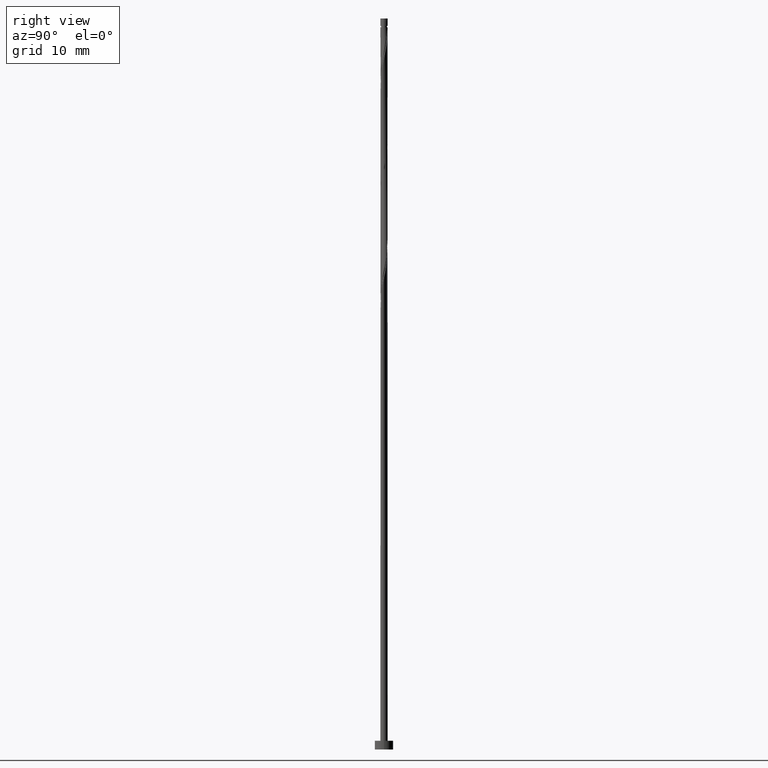
[diagram: clean part render]
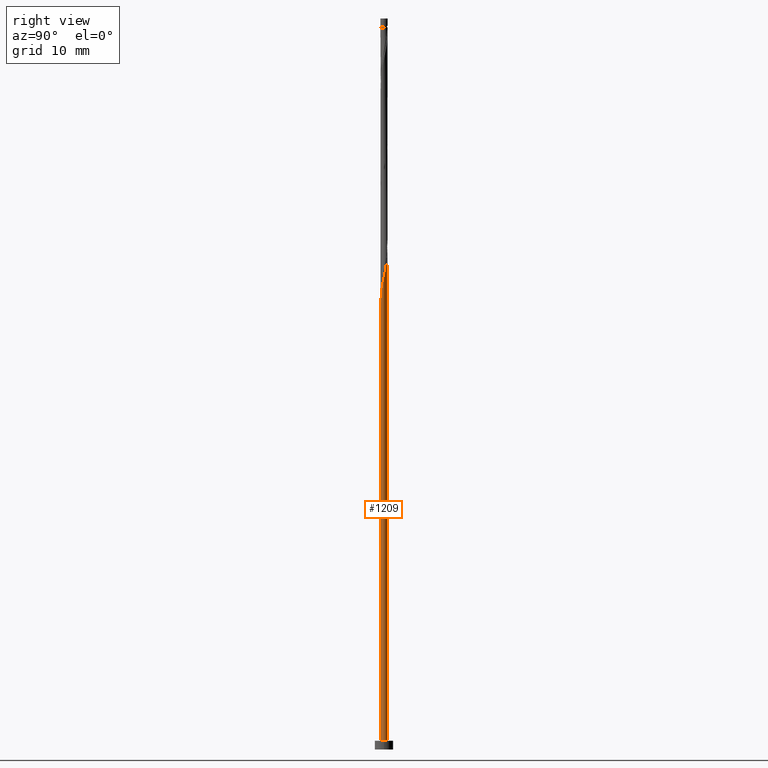
[diagram: same view with one face highlighted and labeled with its STEP entity id]
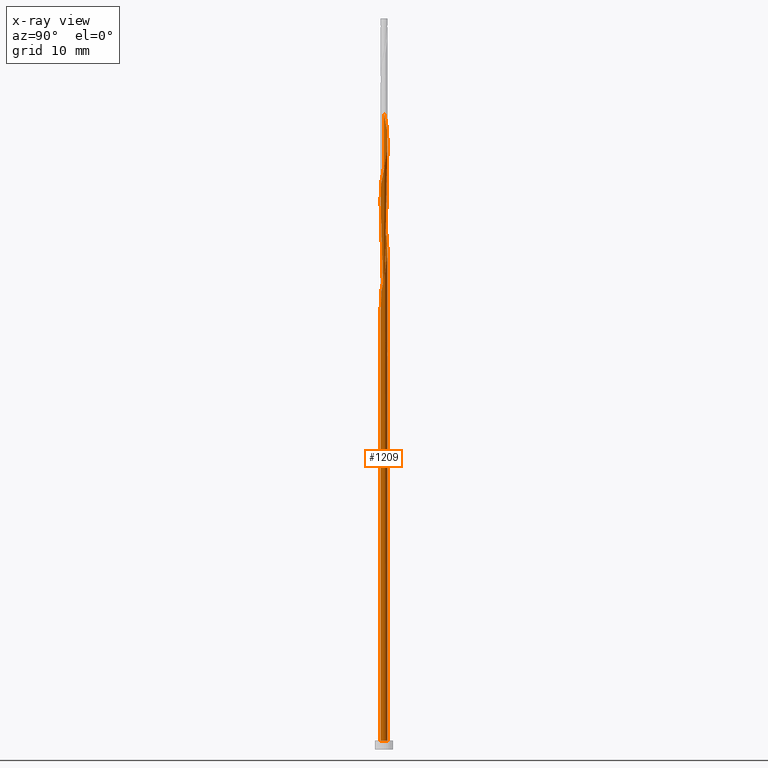
[diagram: x-ray of the same camera — body ghosted, the highlighted face saturated]
A machine part, right view. The second image highlights one B-rep face of the part: STEP entity #1209.
The next image is the same camera in x-ray: the body ghosted, the highlighted face saturated — about 0% of this face is hidden behind the body in this view.
In plain terms, the highlighted cylindrical surface (bore or boss wall) has radius 0.5 mm, axis along (-0, -0, -1).
Its self-contained STEP definition (entity closure, byte-faithful):
#15 = CARTESIAN_POINT ( 'NONE',  ( -0.5000000000000000000, 0.000000000000000000, 100.0000000000000000 ) ) ;
#16 = CARTESIAN_POINT ( 'NONE',  ( 0.4460955302404527867, -0.2424285027197316811, 78.38333333333333997 ) ) ;
#20 = LINE ( 'NONE', #15, #436 ) ;
#35 = CARTESIAN_POINT ( 'NONE',  ( 0.3162091449211505423, 0.3972210690530860178, 81.71666666666665435 ) ) ;
#41 = CARTESIAN_POINT ( 'NONE',  ( -0.01309852316351389420, 0.5075443130627871335, 68.38333333333332575 ) ) ;
#45 = CARTESIAN_POINT ( 'NONE',  ( -0.09949874371066179390, 0.4900000000000008793, 53.79999999999999716 ) ) ;
#46 = CARTESIAN_POINT ( 'NONE',  ( 0.000000000000000000, 0.000000000000000000, 1.199999999999999956 ) ) ;
#66 = CARTESIAN_POINT ( 'NONE',  ( 0.4998335745014880205, 0.01289952716443851580, 64.63333333333333997 ) ) ;
#69 = VERTEX_POINT ( 'NONE', #573 ) ;
#78 =( BOUNDED_CURVE ( )  B_SPLINE_CURVE ( 2, ( #45, #989, #471, #552, #967, #1189, #775, #1091, #974 ),
 .UNSPECIFIED., .F., .T. ) 
 B_SPLINE_CURVE_WITH_KNOTS ( ( 3, 2, 2, 2, 3 ),
 ( 0.000000000000000000, 0.01388888888888883955, 0.02777777777777779011, 0.04166666666666662966, 0.05452480538552906958 ),
 .UNSPECIFIED. ) 
 CURVE ( )  GEOMETRIC_REPRESENTATION_ITEM ( )  RATIONAL_B_SPLINE_CURVE ( ( 0.9090909090909153889, 0.8952797754656498519, 0.9090909090909153889, 0.8952797754656498519, 0.9090909090909153889, 0.8952797754656498519, 0.9090909090909153889, 0.8963047551055899342, 0.9071930855141276950 ) ) 
 REPRESENTATION_ITEM ( '' )  );
#93 = CARTESIAN_POINT ( 'NONE',  ( 0.2610881054719552119, -0.4264188096004513095, 77.13333333333329733 ) ) ;
#130 = CARTESIAN_POINT ( 'NONE',  ( -0.1858989642578099122, 0.4724556869372144030, 69.21666666666666856 ) ) ;
#136 = CARTESIAN_POINT ( 'NONE',  ( -0.5000000000000011102, 0.08152718591022742323, 86.68530303938103998 ) ) ;
#141 = CARTESIAN_POINT ( 'NONE',  ( 0.4975590398240160028, 0.1010336722130053960, 65.04999999999999716 ) ) ;
#145 = DIRECTION ( 'NONE',  ( -0.000000000000000000, -0.000000000000000000, -1.000000000000000000 ) ) ;
#149 = CARTESIAN_POINT ( 'NONE',  ( -0.5000000000000007772, -0.006450837166010229932, 57.10284623704924911 ) ) ;
#159 = CARTESIAN_POINT ( 'NONE',  ( -0.2387454690295328086, 0.4393183367648896831, 55.46666666666666856 ) ) ;
#163 = CARTESIAN_POINT ( 'NONE',  ( 0.09949874371066182166, -0.4900000000000008238, 61.29999999999999716 ) ) ;
#165 = CARTESIAN_POINT ( 'NONE',  ( -0.4652780234504771961, 0.1830747412780305838, 57.13333333333332575 ) ) ;
#168 = CARTESIAN_POINT ( 'NONE',  ( 0.5021081091789604267, -0.07523461788412882933, 64.21666666666666856 ) ) ;
#172 = CARTESIAN_POINT ( 'NONE',  ( -0.3162091449211504868, -0.3972210690530860178, 59.21666666666666856 ) ) ;
#188 = CARTESIAN_POINT ( 'NONE',  ( -0.4975590398240160028, -0.1010336722130054932, 72.55000000000001137 ) ) ;
#193 = VERTEX_POINT ( 'NONE', #830 ) ;
#199 = CARTESIAN_POINT ( 'NONE',  ( -0.4652780234504773071, -0.1830747412780305006, 72.96666666666665435 ) ) ;
#211 = EDGE_CURVE ( 'NONE', #69, #1314, #467, .T. ) ;
#226 = CARTESIAN_POINT ( 'NONE',  ( 0.3911863884632766908, -0.3114052174917099070, 62.96666666666668277 ) ) ;
#231 = CARTESIAN_POINT ( 'NONE',  ( 0.3362772466861005394, -0.3803819322636883271, 77.54999999999999716 ) ) ;
#235 = CARTESIAN_POINT ( 'NONE',  ( -0.1612817931379152137, -0.4814156044766937370, 75.05000000000001137 ) ) ;
#247 = CARTESIAN_POINT ( 'NONE',  ( -0.4741018197097065512, 0.1588315603019300748, 71.30000000000002558 ) ) ;
#249 = CARTESIAN_POINT ( 'NONE',  ( -0.4998335745014880205, 0.01289952716443853141, 57.96666666666667567 ) ) ;
#259 = CARTESIAN_POINT ( 'NONE',  ( 0.2387454690295330029, 0.4393183367648896831, 67.13333333333333997 ) ) ;
#262 = DIRECTION ( 'NONE',  ( -1.000000000000000000, 0.000000000000000000, 0.000000000000000000 ) ) ;
#266 = CARTESIAN_POINT ( 'NONE',  ( -0.4975590398240158918, 0.1010336722130055070, 57.55000000000001137 ) ) ;
#267 = EDGE_CURVE ( 'NONE', #1236, #1314, #313, .T. ) ;
#269 = CARTESIAN_POINT ( 'NONE',  ( 0.09949874371066182166, -0.4900000000000008238, 76.30000000000002558 ) ) ;
#271 = CARTESIAN_POINT ( 'NONE',  ( 0.000000000000000000, 0.000000000000000000, 53.80000000000000426 ) ) ;
#275 = CARTESIAN_POINT ( 'NONE',  ( -0.3746030759990446324, 0.3311684396980706935, 56.29999999999999716 ) ) ;
#292 = CARTESIAN_POINT ( 'NONE',  ( 0.07409163498720100494, 0.4944799587697403798, 67.96666666666666856 ) ) ;
#295 = EDGE_LOOP ( 'NONE', ( #891, #1259, #1082, #421, #583, #520, #1303, #711, #621 ) ) ;
#303 = DIRECTION ( 'NONE',  ( -0.000000000000000000, -0.000000000000000000, -1.000000000000000000 ) ) ;
#312 = CARTESIAN_POINT ( 'NONE',  ( 0.3911863884632766908, -0.3114052174917099070, 77.96666666666665435 ) ) ;
#313 = LINE ( 'NONE', #1244, #887 ) ;
#336 = CARTESIAN_POINT ( 'NONE',  ( 0.3362772466861005394, -0.3803819322636883271, 62.55000000000001137 ) ) ;
#346 = CARTESIAN_POINT ( 'NONE',  ( -0.3911863884632766908, 0.3114052174917099070, 70.46666666666668277 ) ) ;
#349 = CARTESIAN_POINT ( 'NONE',  ( 0.3746030759990447989, 0.3311684396980708045, 81.29999999999999716 ) ) ;
#350 = EDGE_CURVE ( 'NONE', #1362, #193, #20, .T. ) ;
#355 = CARTESIAN_POINT ( 'NONE',  ( 0.01309852316351392196, 0.5075443130627870225, 54.21666666666666146 ) ) ;
#358 = CARTESIAN_POINT ( 'NONE',  ( -0.09949874371066178003, 0.4900000000000008793, 53.79999999999999716 ) ) ;
#361 = VERTEX_POINT ( 'NONE', #440 ) ;
#366 = CARTESIAN_POINT ( 'NONE',  ( 0.3746030759990447989, 0.3311684396980708045, 66.29999999999998295 ) ) ;
#369 = CARTESIAN_POINT ( 'NONE',  ( -0.01309852316351389420, 0.5075443130627871335, 83.38333333333332575 ) ) ;
#372 = CARTESIAN_POINT ( 'NONE',  ( -0.3746030759990447989, -0.3311684396980705825, 58.80000000000001137 ) ) ;
#410 = CARTESIAN_POINT ( 'NONE',  ( -0.3746030759990447989, -0.3311684396980705825, 73.80000000000001137 ) ) ;
#421 = ORIENTED_EDGE ( 'NONE', *, *, #1023, .T. ) ;
#436 = VECTOR ( 'NONE', #1066, 1000.000000000000000 ) ;
#440 = CARTESIAN_POINT ( 'NONE',  ( 0.09949874371066201595, 0.4900000000000007683, 53.79999999999999716 ) ) ;
#441 = CARTESIAN_POINT ( 'NONE',  ( 0.4741018197097065512, -0.1588315603019302691, 63.79999999999999716 ) ) ;
#448 = CARTESIAN_POINT ( 'NONE',  ( -0.3362772466861007059, 0.3803819322636883271, 70.04999999999998295 ) ) ;
#455 = CARTESIAN_POINT ( 'NONE',  ( -0.5000000000000007772, -9.803696796398973244E-17, 87.07223060051012453 ) ) ;
#461 = CYLINDRICAL_SURFACE ( 'NONE', #496, 0.5000000000000000000 ) ;
#467 = CIRCLE ( 'NONE', #1240, 0.5000000000000000000 ) ;
#471 = CARTESIAN_POINT ( 'NONE',  ( -0.2610881054719552674, 0.4264188096004513095, 54.63333333333332575 ) ) ;
#475 = CARTESIAN_POINT ( 'NONE',  ( 0.4975590398240160028, 0.1010336722130053960, 80.04999999999998295 ) ) ;
#496 = AXIS2_PLACEMENT_3D ( 'NONE', #1088, #145, #262 ) ;
#520 = ORIENTED_EDGE ( 'NONE', *, *, #267, .F. ) ;
#548 = CIRCLE ( 'NONE', #960, 0.5000000000000000000 ) ;
#552 = CARTESIAN_POINT ( 'NONE',  ( -0.3362772466861007059, 0.3803819322636883271, 55.05000000000001137 ) ) ;
#559 = CARTESIAN_POINT ( 'NONE',  ( -0.2610881054719552674, 0.4264188096004513095, 69.63333333333335418 ) ) ;
#572 = CARTESIAN_POINT ( 'NONE',  ( 0.4329970070769391111, 0.2651158103430553137, 80.88333333333332575 ) ) ;
#573 = CARTESIAN_POINT ( 'NONE',  ( 0.5000000000000000000, 0.000000000000000000, 1.199999999999999956 ) ) ;
#576 = DIRECTION ( 'NONE',  ( 0.000000000000000000, -0.000000000000000000, -1.000000000000000000 ) ) ;
#577 = CARTESIAN_POINT ( 'NONE',  ( -0.4975590398240160028, -0.1010336722130054932, 57.54999999999999716 ) ) ;
#581 = CARTESIAN_POINT ( 'NONE',  ( -0.07409163498720063024, 0.4944799587697402687, 54.63333333333333286 ) ) ;
#583 = ORIENTED_EDGE ( 'NONE', *, *, #211, .T. ) ;
#589 = FACE_OUTER_BOUND ( 'NONE', #295, .T. ) ;
#591 = CARTESIAN_POINT ( 'NONE',  ( -0.3162091449211504868, -0.3972210690530860178, 74.21666666666671119 ) ) ;
#593 = EDGE_CURVE ( 'NONE', #1061, #361, #548, .T. ) ;
#621 = ORIENTED_EDGE ( 'NONE', *, *, #1324, .F. ) ;
#671 = CARTESIAN_POINT ( 'NONE',  ( -0.3162091449211504313, 0.3972210690530858512, 55.88333333333333286 ) ) ;
#678 = CARTESIAN_POINT ( 'NONE',  ( -0.5000000000000005551, 0.006450837166012286447, 57.99715376295075231 ) ) ;
#685 = CARTESIAN_POINT ( 'NONE',  ( 0.4998335745014880205, 0.01289952716443851580, 79.63333333333333997 ) ) ;
#692 = CARTESIAN_POINT ( 'NONE',  ( 0.01309852316351374675, -0.5075443130627872446, 60.88333333333334707 ) ) ;
#697 = CARTESIAN_POINT ( 'NONE',  ( 0.1612817931379155190, 0.4814156044766936260, 82.55000000000001137 ) ) ;
#706 = CARTESIAN_POINT ( 'NONE',  ( -0.4652780234504773071, -0.1830747412780305006, 57.96666666666666146 ) ) ;
#711 = ORIENTED_EDGE ( 'NONE', *, *, #593, .T. ) ;
#712 = CARTESIAN_POINT ( 'NONE',  ( -0.09949874371066179390, 0.4900000000000008238, 68.79999999999996874 ) ) ;
#725 = CARTESIAN_POINT ( 'NONE',  ( 0.000000000000000000, 0.000000000000000000, 1.199999999999999956 ) ) ;
#744 = EDGE_CURVE ( 'NONE', #1061, #1236, #78, .T. ) ;
#761 = CARTESIAN_POINT ( 'NONE',  ( -0.4460955302404527867, 0.2424285027197316256, 70.88333333333332575 ) ) ;
#762 = CARTESIAN_POINT ( 'NONE',  ( -0.5000000000000007772, 5.434049081432574150E-16, 57.07223060051013164 ) ) ;
#775 = CARTESIAN_POINT ( 'NONE',  ( -0.4741018197097065512, 0.1588315603019300748, 56.30000000000001137 ) ) ;
#778 = CARTESIAN_POINT ( 'NONE',  ( -0.3911863884632766908, 0.3114052174917099070, 85.46666666666666856 ) ) ;
#812 = CARTESIAN_POINT ( 'NONE',  ( 0.1612817931379155190, 0.4814156044766936260, 67.54999999999999716 ) ) ;
#817 = DIRECTION ( 'NONE',  ( 0.000000000000000000, 0.000000000000000000, 1.000000000000000000 ) ) ;
#830 = CARTESIAN_POINT ( 'NONE',  ( -0.5000000000000006661, -4.855164127740446616E-16, 58.02776939948987689 ) ) ;
#868 = CARTESIAN_POINT ( 'NONE',  ( 0.3162091449211505423, 0.3972210690530860178, 66.71666666666666856 ) ) ;
#875 = CARTESIAN_POINT ( 'NONE',  ( -0.2387454690295328918, -0.4393183367648896831, 59.63333333333333286 ) ) ;
#877 = CARTESIAN_POINT ( 'NONE',  ( -0.5000000000000007772, -9.803696796398973244E-17, 87.07223060051012453 ) ) ;
#879 = CARTESIAN_POINT ( 'NONE',  ( 0.2610881054719552119, -0.4264188096004513095, 62.13333333333333997 ) ) ;
#887 = VECTOR ( 'NONE', #303, 1000.000000000000000 ) ;
#891 = ORIENTED_EDGE ( 'NONE', *, *, #350, .F. ) ;
#892 = CARTESIAN_POINT ( 'NONE',  ( -0.5000000000000000000, 0.000000000000000000, 1.199999999999999956 ) ) ;
#897 = CARTESIAN_POINT ( 'NONE',  ( -0.1858989642578099122, 0.4724556869372144030, 84.21666666666665435 ) ) ;
#908 = CARTESIAN_POINT ( 'NONE',  ( 0.4652780234504774182, 0.1830747412780303895, 65.46666666666666856 ) ) ;
#934 = CARTESIAN_POINT ( 'NONE',  ( -0.4998335745014880205, -0.01289952716443847763, 72.13333333333333997 ) ) ;
#960 = AXIS2_PLACEMENT_3D ( 'NONE', #271, #576, #1290 ) ;
#961 = CARTESIAN_POINT ( 'NONE',  ( 0.4460955302404527867, -0.2424285027197316811, 63.38333333333333286 ) ) ;
#962 = CARTESIAN_POINT ( 'NONE',  ( 0.5021081091789604267, -0.07523461788412882933, 79.21666666666668277 ) ) ;
#967 = CARTESIAN_POINT ( 'NONE',  ( -0.3911863884632766908, 0.3114052174917099070, 55.46666666666667567 ) ) ;
#974 = CARTESIAN_POINT ( 'NONE',  ( -0.5000000000000007772, 5.434049081432574150E-16, 57.07223060051013164 ) ) ;
#977 = CARTESIAN_POINT ( 'NONE',  ( -0.1612817931379151581, 0.4814156044766936260, 55.04999999999999716 ) ) ;
#984 = CARTESIAN_POINT ( 'NONE',  ( 0.2387454690295330029, 0.4393183367648896831, 82.13333333333335418 ) ) ;
#989 = CARTESIAN_POINT ( 'NONE',  ( -0.1858989642578099122, 0.4724556869372144030, 54.21666666666667567 ) ) ;
#991 = CARTESIAN_POINT ( 'NONE',  ( 0.4652780234504774182, 0.1830747412780303895, 80.46666666666668277 ) ) ;
#992 = DIRECTION ( 'NONE',  ( 1.000000000000000000, 0.000000000000000000, 0.000000000000000000 ) ) ;
#999 = CARTESIAN_POINT ( 'NONE',  ( 0.09949874371066202983, 0.4900000000000007683, 53.79999999999999716 ) ) ;
#1009 = CARTESIAN_POINT ( 'NONE',  ( -0.2610881054719552674, 0.4264188096004513095, 84.63333333333332575 ) ) ;
#1023 = EDGE_CURVE ( 'NONE', #1314, #69, #1353, .T. ) ;
#1027 = CARTESIAN_POINT ( 'NONE',  ( -0.5021081091789604267, 0.07523461788412853790, 71.71666666666666856 ) ) ;
#1029 = AXIS2_PLACEMENT_3D ( 'NONE', #46, #1121, #992 ) ;
#1061 = VERTEX_POINT ( 'NONE', #358 ) ;
#1066 = DIRECTION ( 'NONE',  ( -0.000000000000000000, -0.000000000000000000, -1.000000000000000000 ) ) ;
#1082 = ORIENTED_EDGE ( 'NONE', *, *, #267, .T. ) ;
#1088 = CARTESIAN_POINT ( 'NONE',  ( 0.000000000000000000, 0.000000000000000000, 100.0000000000000000 ) ) ;
#1091 = CARTESIAN_POINT ( 'NONE',  ( -0.5000000000000007772, 0.08152718591022869998, 56.68530303938106840 ) ) ;
#1098 = CARTESIAN_POINT ( 'NONE',  ( 0.01309852316351374675, -0.5075443130627872446, 75.88333333333333997 ) ) ;
#1106 = CARTESIAN_POINT ( 'NONE',  ( -0.5000000000000006661, -4.855164127740446616E-16, 58.02776939948987689 ) ) ;
#1116 = CARTESIAN_POINT ( 'NONE',  ( -0.09949874371066179390, 0.4900000000000008238, 83.80000000000002558 ) ) ;
#1121 = DIRECTION ( 'NONE',  ( 0.000000000000000000, 0.000000000000000000, 1.000000000000000000 ) ) ;
#1122 = CARTESIAN_POINT ( 'NONE',  ( -0.4329970070769388890, -0.2651158103430555912, 58.38333333333332575 ) ) ;
#1175 = EDGE_CURVE ( 'NONE', #1236, #1362, #1182, .T. ) ;
#1182 =( BOUNDED_CURVE ( )  B_SPLINE_CURVE ( 2, ( #1183, #149, #1205, #577, #706, #1122, #372, #172, #875, #1214, #1297, #692, #163, #1319, #879, #336, #226, #961, #441, #168, #66, #141, #908, #1230, #366, #868, #259, #812, #292, #41, #712, #130, #559, #448, #346, #761, #247, #1027, #934, #188, #199, #1351, #410, #591, #1285, #235, #1188, #1098, #269, #1359, #93, #231, #312, #16, #1281, #962, #685, #475, #991, #572, #349, #35, #984, #697, #1301, #369, #1116, #897, #1009, #1293, #778, #1217, #1202, #136, #877 ),
 .UNSPECIFIED., .F., .T. ) 
 B_SPLINE_CURVE_WITH_KNOTS ( ( 3, 2, 2, 2, 2, 2, 2, 2, 2, 2, 2, 2, 2, 2, 2, 2, 2, 2, 2, 2, 2, 2, 2, 2, 2, 2, 2, 2, 2, 2, 2, 2, 2, 2, 2, 2, 2, 3 ),
 ( 0.05452480538552907652, 0.05555555555555558023, 0.06944444444444441977, 0.08333333333333337034, 0.09722222222222220989, 0.1111111111111111605, 0.1250000000000000000, 0.1388888888888888395, 0.1527777777777777901, 0.1666666666666666297, 0.1805555555555555802, 0.1944444444444444198, 0.2083333333333333703, 0.2222222222222222099, 0.2361111111111111605, 0.2500000000000000000, 0.2638888888888888395, 0.2777777777777777901, 0.2916666666666666297, 0.3055555555555555802, 0.3194444444444444198, 0.3333333333333333703, 0.3472222222222222099, 0.3611111111111111605, 0.3750000000000000000, 0.3888888888888888395, 0.4027777777777777901, 0.4166666666666666297, 0.4305555555555555802, 0.4444444444444444198, 0.4583333333333333703, 0.4722222222222222099, 0.4861111111111111605, 0.5000000000000000000, 0.5138888888888888395, 0.5277777777777777901, 0.5416666666666667407, 0.5545248053855292847 ),
 .UNSPECIFIED. ) 
 CURVE ( )  GEOMETRIC_REPRESENTATION_ITEM ( )  RATIONAL_B_SPLINE_CURVE ( ( 0.9071930855141276950, 0.9080659294509753066, 0.9090909090909153889, 0.8952797754656498519, 0.9090909090909153889, 0.8952797754656498519, 0.9090909090909153889, 0.8952797754656498519, 0.9090909090909153889, 0.8952797754656498519, 0.9090909090909153889, 0.8952797754656498519, 0.9090909090909153889, 0.8952797754656498519, 0.9090909090909153889, 0.8952797754656498519, 0.9090909090909153889, 0.8952797754656498519, 0.9090909090909153889, 0.8952797754656498519, 0.9090909090909153889, 0.8952797754656498519, 0.9090909090909153889, 0.8952797754656498519, 0.9090909090909153889, 0.8952797754656498519, 0.9090909090909153889, 0.8952797754656498519, 0.9090909090909153889, 0.8952797754656498519, 0.9090909090909153889, 0.8952797754656498519, 0.9090909090909153889, 0.8952797754656498519, 0.9090909090909153889, 0.8952797754656498519, 0.9090909090909153889, 0.8952797754656498519, 0.9090909090909153889, 0.8952797754656498519, 0.9090909090909153889, 0.8952797754656498519, 0.9090909090909153889, 0.8952797754656498519, 0.9090909090909153889, 0.8952797754656498519, 0.9090909090909153889, 0.8952797754656498519, 0.9090909090909153889, 0.8952797754656498519, 0.9090909090909153889, 0.8952797754656498519, 0.9090909090909153889, 0.8952797754656498519, 0.9090909090909153889, 0.8952797754656498519, 0.9090909090909153889, 0.8952797754656498519, 0.9090909090909153889, 0.8952797754656498519, 0.9090909090909153889, 0.8952797754656498519, 0.9090909090909153889, 0.8952797754656498519, 0.9090909090909153889, 0.8952797754656498519, 0.9090909090909153889, 0.8952797754656498519, 0.9090909090909153889, 0.8952797754656498519, 0.9090909090909153889, 0.8952797754656498519, 0.9090909090909153889, 0.8963047551055898232, 0.9071930855141279171 ) ) 
 REPRESENTATION_ITEM ( '' )  );
#1183 = CARTESIAN_POINT ( 'NONE',  ( -0.5000000000000007772, 5.434049081432574150E-16, 57.07223060051013164 ) ) ;
#1188 = CARTESIAN_POINT ( 'NONE',  ( -0.07409163498720072738, -0.4944799587697403798, 75.46666666666666856 ) ) ;
#1189 = CARTESIAN_POINT ( 'NONE',  ( -0.4460955302404527867, 0.2424285027197316256, 55.88333333333333997 ) ) ;
#1202 = CARTESIAN_POINT ( 'NONE',  ( -0.4741018197097065512, 0.1588315603019300748, 86.29999999999999716 ) ) ;
#1205 = CARTESIAN_POINT ( 'NONE',  ( -0.4998335745014880205, -0.01289952716443847763, 57.13333333333333997 ) ) ;
#1209 = ADVANCED_FACE ( 'NONE', ( #589 ), #461, .T. ) ;
#1214 = CARTESIAN_POINT ( 'NONE',  ( -0.1612817931379152137, -0.4814156044766937370, 60.04999999999999716 ) ) ;
#1217 = CARTESIAN_POINT ( 'NONE',  ( -0.4460955302404527867, 0.2424285027197316256, 85.88333333333335418 ) ) ;
#1230 = CARTESIAN_POINT ( 'NONE',  ( 0.4329970070769391111, 0.2651158103430553137, 65.88333333333333997 ) ) ;
#1236 = VERTEX_POINT ( 'NONE', #762 ) ;
#1240 = AXIS2_PLACEMENT_3D ( 'NONE', #725, #817, #1250 ) ;
#1244 = CARTESIAN_POINT ( 'NONE',  ( -0.5000000000000000000, 0.000000000000000000, 100.0000000000000000 ) ) ;
#1250 = DIRECTION ( 'NONE',  ( 1.000000000000000000, 0.000000000000000000, 0.000000000000000000 ) ) ;
#1259 = ORIENTED_EDGE ( 'NONE', *, *, #1175, .F. ) ;
#1272 =( BOUNDED_CURVE ( )  B_SPLINE_CURVE ( 2, ( #1106, #678, #249, #266, #165, #1315, #275, #671, #159, #977, #581, #355, #999 ),
 .UNSPECIFIED., .F., .T. ) 
 B_SPLINE_CURVE_WITH_KNOTS ( ( 3, 2, 2, 2, 2, 2, 3 ),
 ( 0.9295248053855293957, 0.9305555555555555802, 0.9444444444444444198, 0.9583333333333333703, 0.9722222222222222099, 0.9861111111111111605, 1.000000000000000000 ),
 .UNSPECIFIED. ) 
 CURVE ( )  GEOMETRIC_REPRESENTATION_ITEM ( )  RATIONAL_B_SPLINE_CURVE ( ( 0.9071930855141279171, 0.9080659294509753066, 0.9090909090909150558, 0.8952797754656496299, 0.9090909090909150558, 0.8952797754656496299, 0.9090909090909150558, 0.8952797754656496299, 0.9090909090909150558, 0.8952797754656496299, 0.9090909090909150558, 0.8952797754656496299, 0.9090909090909150558 ) ) 
 REPRESENTATION_ITEM ( '' )  );
#1281 = CARTESIAN_POINT ( 'NONE',  ( 0.4741018197097065512, -0.1588315603019302691, 78.80000000000001137 ) ) ;
#1285 = CARTESIAN_POINT ( 'NONE',  ( -0.2387454690295328918, -0.4393183367648896831, 74.63333333333331154 ) ) ;
#1290 = DIRECTION ( 'NONE',  ( -1.000000000000000000, 0.000000000000000000, 0.000000000000000000 ) ) ;
#1293 = CARTESIAN_POINT ( 'NONE',  ( -0.3362772466861007059, 0.3803819322636883271, 85.04999999999998295 ) ) ;
#1297 = CARTESIAN_POINT ( 'NONE',  ( -0.07409163498720072738, -0.4944799587697403798, 60.46666666666666146 ) ) ;
#1301 = CARTESIAN_POINT ( 'NONE',  ( 0.07409163498720100494, 0.4944799587697403798, 82.96666666666666856 ) ) ;
#1303 = ORIENTED_EDGE ( 'NONE', *, *, #744, .F. ) ;
#1314 = VERTEX_POINT ( 'NONE', #892 ) ;
#1315 = CARTESIAN_POINT ( 'NONE',  ( -0.4329970070769387780, 0.2651158103430555912, 56.71666666666666856 ) ) ;
#1319 = CARTESIAN_POINT ( 'NONE',  ( 0.1858989642578097734, -0.4724556869372145695, 61.71666666666666146 ) ) ;
#1324 = EDGE_CURVE ( 'NONE', #193, #361, #1272, .T. ) ;
#1351 = CARTESIAN_POINT ( 'NONE',  ( -0.4329970070769388890, -0.2651158103430555912, 73.38333333333331154 ) ) ;
#1353 = CIRCLE ( 'NONE', #1029, 0.5000000000000000000 ) ;
#1359 = CARTESIAN_POINT ( 'NONE',  ( 0.1858989642578097734, -0.4724556869372145695, 76.71666666666665435 ) ) ;
#1362 = VERTEX_POINT ( 'NONE', #455 ) ;